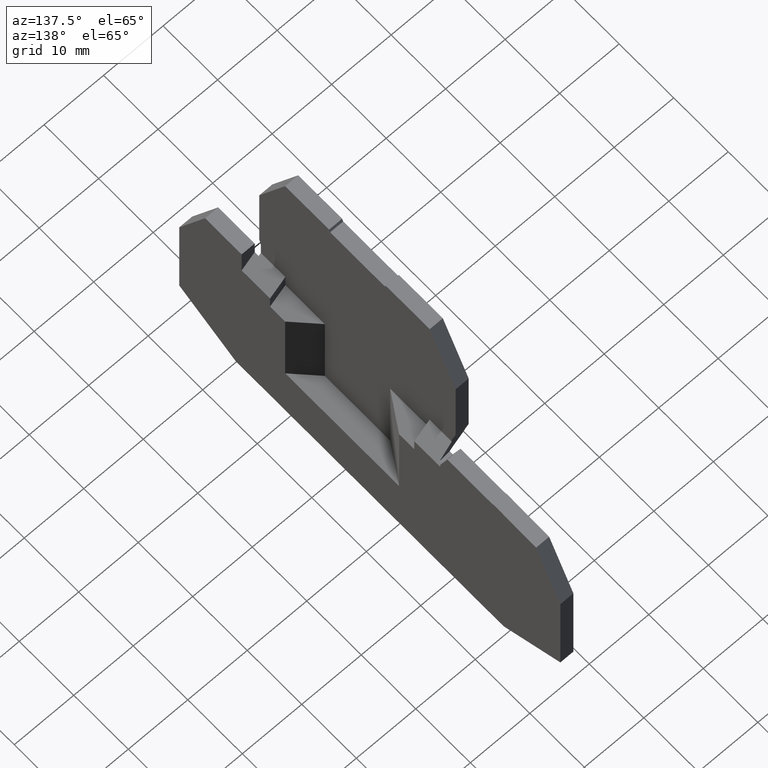
[diagram: clean part render]
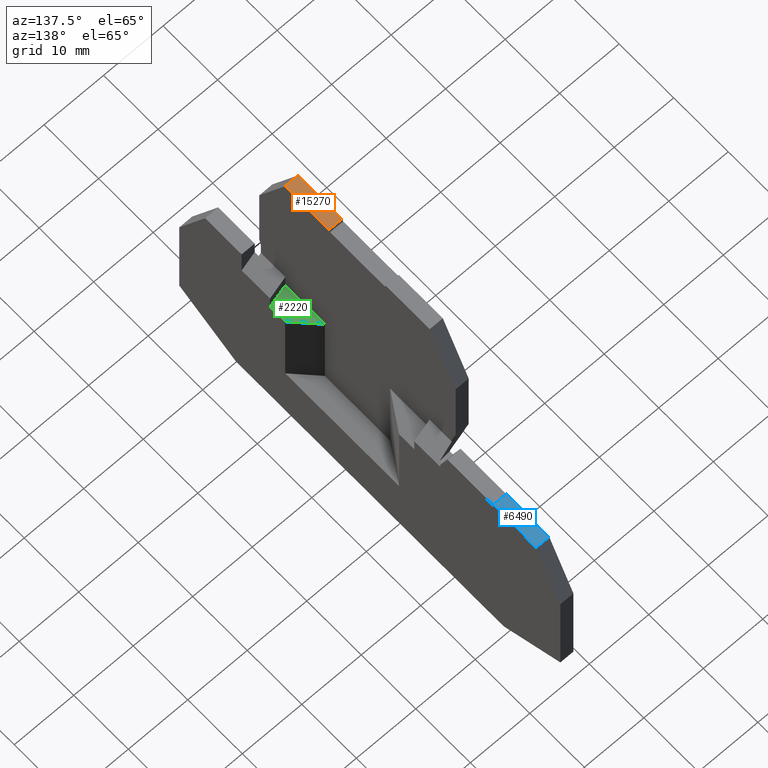
[diagram: same view with three faces highlighted in distinct colors, each labeled with its STEP entity id]
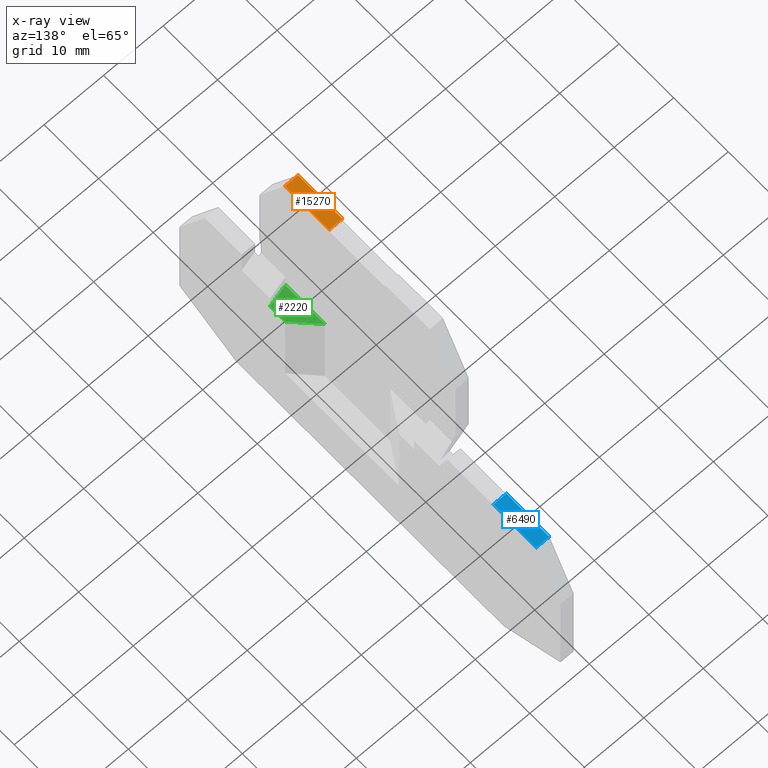
[diagram: x-ray of the same camera — body ghosted, the three highlighted faces saturated]
A machine part, auxiliary view with three faces highlighted in distinct colors.
The next image is the same camera in x-ray (body ghosted, the three faces saturated) — at least one of them is partly hidden behind the body in this view.
Their STEP definitions:

[orange] entity #15270 — the highlighted planar face has unit normal (0, 0, 1).
#1080=CARTESIAN_POINT('',(-23.7805602896656,19.0999999695038,
15.5000000000049));
#1090=VERTEX_POINT('',#1080);
#1120=CARTESIAN_POINT('',(-12.6172159999996,19.0999999695038,
15.5000000000049));
#1130=DIRECTION('',(-1.,-1.62505346475527E-28,0.));
#1140=VECTOR('',#1130,1.);
#1150=LINE('',#1120,#1140);
#1160=CARTESIAN_POINT('',(-15.7208410459889,19.0999999695038,
15.5000000000049));
#1170=VERTEX_POINT('',#1160);
#1180=EDGE_CURVE('',#1170,#1090,#1150,.T.);
#2950=CARTESIAN_POINT('',(-23.7805602896655,19.0999999695038,
13.3000001835675));
#2960=VERTEX_POINT('',#2950);
#2990=CARTESIAN_POINT('',(-23.7805602896655,19.0999999695038,
13.3000000000076));
#3000=DIRECTION('',(-1.54924064741312E-14,1.05655906439346E-14,1.));
#3010=VECTOR('',#3000,1.);
#3020=LINE('',#2990,#3010);
#3030=EDGE_CURVE('',#2960,#1090,#3020,.T.);
#15040=CARTESIAN_POINT('',(-15.7208410459889,19.0999999695038,
14.9000000556849));
#15050=DIRECTION('',(-1.61097812794554E-28,1.,-1.05655906439346E-14));
#15060=DIRECTION('',(1.,1.11631705655199E-28,-4.68181181785158E-15));
#15070=AXIS2_PLACEMENT_3D('',#15040,#15050,#15060);
#15080=PLANE('',#15070);
#15090=ORIENTED_EDGE('',*,*,#1180,.F.);
#15100=ORIENTED_EDGE('',*,*,#3030,.T.);
#15110=CARTESIAN_POINT('',(-9.30922553606298,19.0999999695038,
13.3000001835678));
#15120=DIRECTION('',(-1.,-3.84438123398275E-28,-2.11450590756771E-14));
#15130=VECTOR('',#15120,1.);
#15140=LINE('',#15110,#15130);
#15150=CARTESIAN_POINT('',(-15.7208410459889,19.0999999695038,
13.3000001835677));
#15160=VERTEX_POINT('',#15150);
#15170=EDGE_CURVE('',#15160,#2960,#15140,.T.);
#15180=ORIENTED_EDGE('',*,*,#15170,.T.);
#15190=CARTESIAN_POINT('',(-15.7208410459889,19.0999999695038,
13.3000000000074));
#15200=DIRECTION('',(4.68181181785157E-15,1.05655906439346E-14,1.));
#15210=VECTOR('',#15200,1.);
#15220=LINE('',#15190,#15210);
#15230=EDGE_CURVE('',#15160,#1170,#15220,.T.);
#15240=ORIENTED_EDGE('',*,*,#15230,.F.);
#15250=EDGE_LOOP('',(#15240,#15180,#15100,#15090));
#15260=FACE_OUTER_BOUND('',#15250,.T.);
#15270=ADVANCED_FACE('',(#15260),#15080,.T.);

[blue] entity #6490 — the highlighted planar face has unit normal (-0, -0.0349, -0.9994).
#4560=CARTESIAN_POINT('',(25.0499955390839,-5.96358483316046,
18.0750000000435));
#4570=VERTEX_POINT('',#4560);
#5990=CARTESIAN_POINT('',(17.2291607448185,-5.69047526407767,
18.0750000000435));
#6000=VERTEX_POINT('',#5990);
#6030=CARTESIAN_POINT('',(-12.6172159999996,-4.64821682161103,
18.0750000000435));
#6040=DIRECTION('',(-0.999390827019099,0.0348994967024003,
6.48433533763963E-19));
#6050=VECTOR('',#6040,1.);
#6060=LINE('',#6030,#6050);
#6070=EDGE_CURVE('',#4570,#6000,#6060,.T.);
#6190=CARTESIAN_POINT('',(25.0500011787196,-5.96358503009978,
9.57249736109184));
#6200=DIRECTION('',(-0.0348994967024003,-0.999390827019099,
-1.2980466419328E-13));
#6210=DIRECTION('',(-0.999390827019099,0.0348994967024003,
-1.0547365120906E-12));
#6220=AXIS2_PLACEMENT_3D('',#6190,#6200,#6210);
#6230=PLANE('',#6220);
#6240=CARTESIAN_POINT('',(25.0499955390836,-5.96358483315983,
13.3000000000064));
#6250=DIRECTION('',(-6.08446281546674E-14,1.32008527120893E-13,-1.));
#6260=VECTOR('',#6250,1.);
#6270=LINE('',#6240,#6260);
#6280=CARTESIAN_POINT('',(25.0499955390837,-5.96358483316017,
15.8749999652442));
#6290=VERTEX_POINT('',#6280);
#6300=EDGE_CURVE('',#4570,#6290,#6270,.T.);
#6310=ORIENTED_EDGE('',*,*,#6300,.T.);
#6320=ORIENTED_EDGE('',*,*,#6070,.F.);
#6330=CARTESIAN_POINT('',(17.2291607448186,-5.69047526407744,
13.3000000000066));
#6340=DIRECTION('',(-1.05655906439346E-14,2.11311812878692E-14,1.));
#6350=VECTOR('',#6340,1.);
#6360=LINE('',#6330,#6350);
#6370=CARTESIAN_POINT('',(17.2291607448185,-5.69047526407738,
15.8749999652441));
#6380=VERTEX_POINT('',#6370);
#6390=EDGE_CURVE('',#6380,#6000,#6360,.T.);
#6400=ORIENTED_EDGE('',*,*,#6390,.T.);
#6410=CARTESIAN_POINT('',(-12.6172159999996,-4.64821682161074,
15.8749999652437));
#6420=DIRECTION('',(0.999390827019099,-0.0348994967024003,
1.12958708420272E-14));
#6430=VECTOR('',#6420,1.);
#6440=LINE('',#6410,#6430);
#6450=EDGE_CURVE('',#6380,#6290,#6440,.T.);
#6460=ORIENTED_EDGE('',*,*,#6450,.F.);
#6470=EDGE_LOOP('',(#6460,#6400,#6320,#6310));
#6480=FACE_OUTER_BOUND('',#6470,.T.);
#6490=ADVANCED_FACE('',(#6480),#6230,.F.);

[green] entity #2220 — the highlighted planar face has unit normal (-0.7071, 0, -0.7071).
#520=CARTESIAN_POINT('',(-16.5055199481804,-9.8507333902624,
15.5000000000049));
#530=VERTEX_POINT('',#520);
#560=CARTESIAN_POINT('',(-12.6172159999996,-9.85073339025749,
15.5000000000049));
#570=DIRECTION('',(1.,1.26492327806076E-12,3.15544362088405E-30));
#580=VECTOR('',#570,1.);
#590=LINE('',#560,#580);
#600=CARTESIAN_POINT('',(-23.7458403011824,-9.85073339027156,
15.5000000000049));
#610=VERTEX_POINT('',#600);
#620=EDGE_CURVE('',#610,#530,#590,.T.);
#1920=CARTESIAN_POINT('',(-23.5458403197444,-12.244971926063,
17.8942385357967));
#1930=DIRECTION('',(8.94435827597492E-13,-0.707106781186557,
-0.707106781186538));
#1940=DIRECTION('',(-6.09551666653263E-13,-0.707106781186538,
0.707106781186557));
#1950=AXIS2_PLACEMENT_3D('',#1920,#1930,#1940);
#1960=PLANE('',#1950);
#1970=CARTESIAN_POINT('',(-12.6172159999997,-7.60582005909004,
13.2550866688374));
#1980=DIRECTION('',(0.774596669241876,0.447213595500102,
-0.447213595499134));
#1990=VECTOR('',#1980,1.);
#2000=LINE('',#1970,#1990);
#2010=CARTESIAN_POINT('',(-20.9655503638568,-12.4257333903066,
18.0750000000435));
#2020=VERTEX_POINT('',#2010);
#2030=EDGE_CURVE('',#2020,#530,#2000,.T.);
#2040=ORIENTED_EDGE('',*,*,#2030,.T.);
#2050=CARTESIAN_POINT('',(-12.6172159999996,-12.425733390296,
18.0750000000435));
#2060=DIRECTION('',(1.,1.26492327806076E-12,6.31088724176809E-30));
#2070=VECTOR('',#2060,1.);
#2080=LINE('',#2050,#2070);
#2090=CARTESIAN_POINT('',(-23.7458403011846,-12.4257333903101,
18.0750000000435));
#2100=VERTEX_POINT('',#2090);
#2110=EDGE_CURVE('',#2100,#2020,#2080,.T.);
#2120=ORIENTED_EDGE('',*,*,#2110,.T.);
#2130=CARTESIAN_POINT('',(-23.7458403011805,-7.65073339027431,
13.3000000000076));
#2140=DIRECTION('',(6.09588802098487E-13,0.707106781186538,
-0.707106781186557));
#2150=VECTOR('',#2140,1.);
#2160=LINE('',#2130,#2150);
#2170=EDGE_CURVE('',#2100,#610,#2160,.T.);
#2180=ORIENTED_EDGE('',*,*,#2170,.F.);
#2190=ORIENTED_EDGE('',*,*,#620,.F.);
#2200=EDGE_LOOP('',(#2190,#2180,#2120,#2040));
#2210=FACE_OUTER_BOUND('',#2200,.T.);
#2220=ADVANCED_FACE('',(#2210),#1960,.F.);